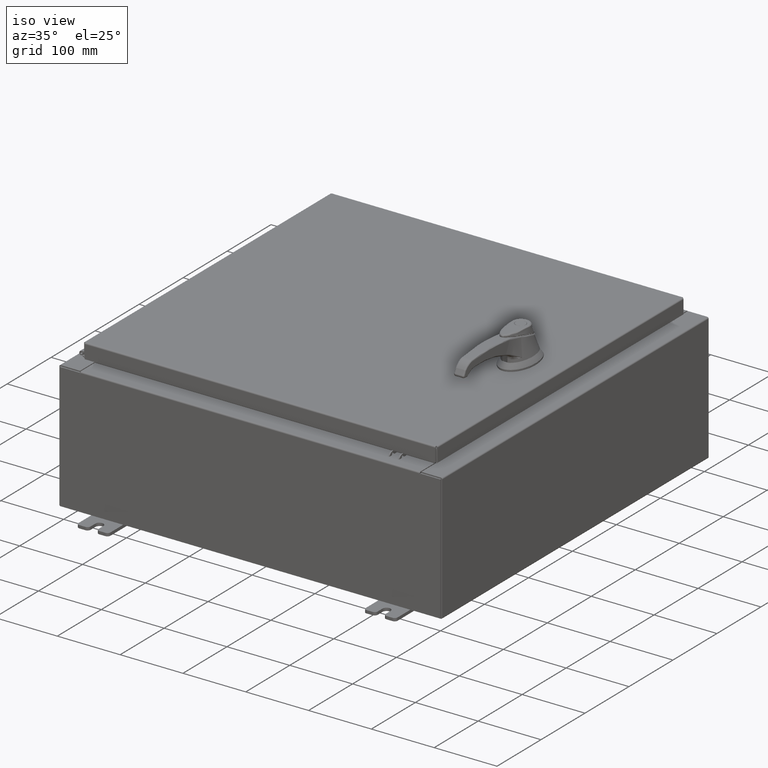
[diagram: clean part render]
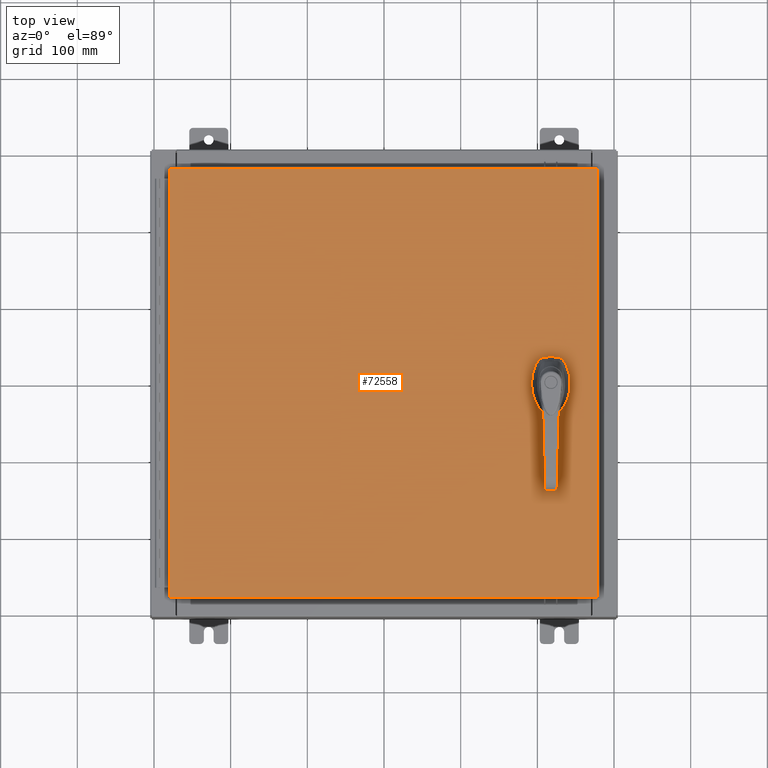
[diagram: tour spotlight — one face highlighted and labeled with its STEP entity id]
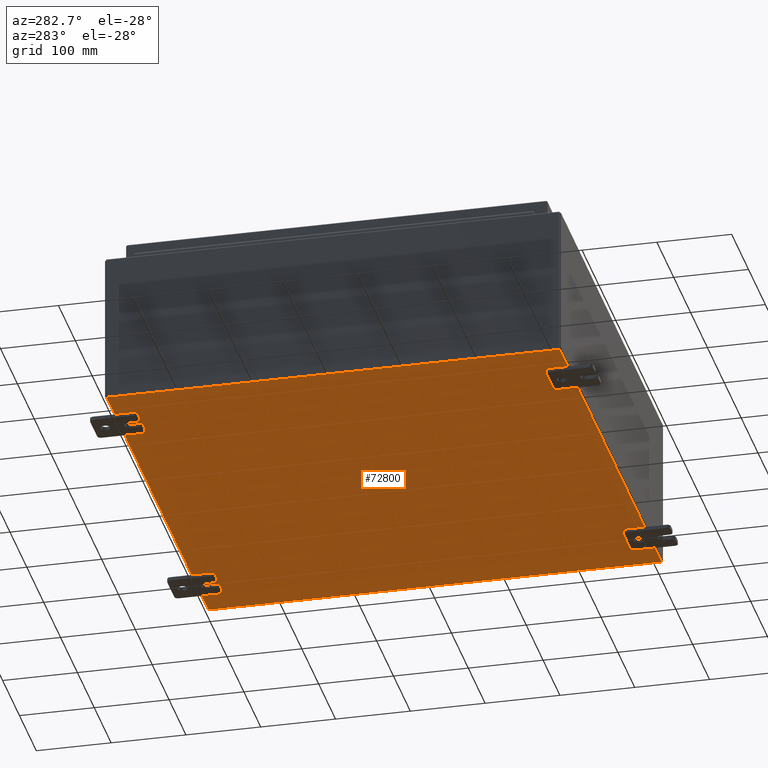
[diagram: tour spotlight — one face highlighted and labeled with its STEP entity id]
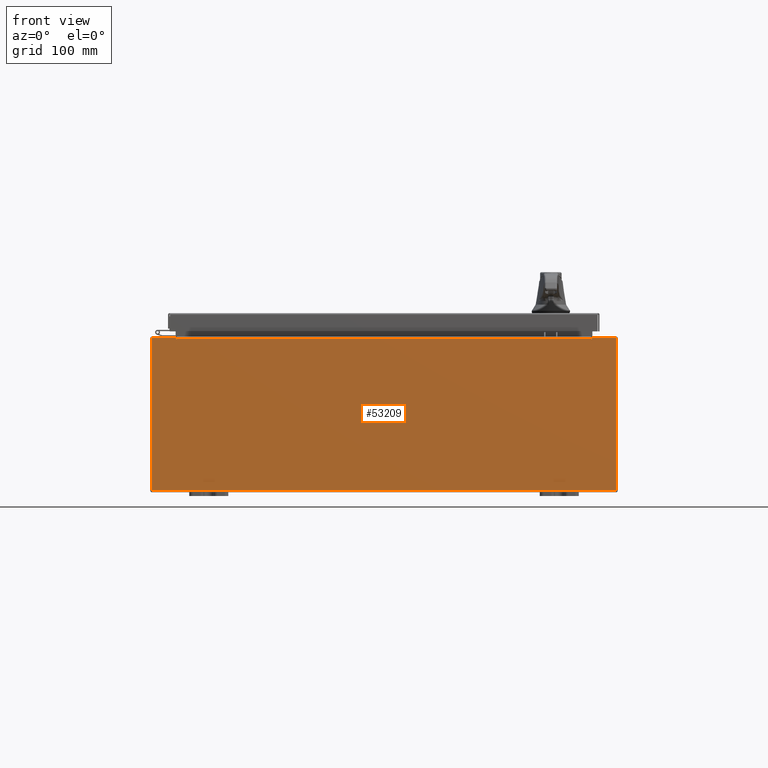
[diagram: tour spotlight — one face highlighted and labeled with its STEP entity id]
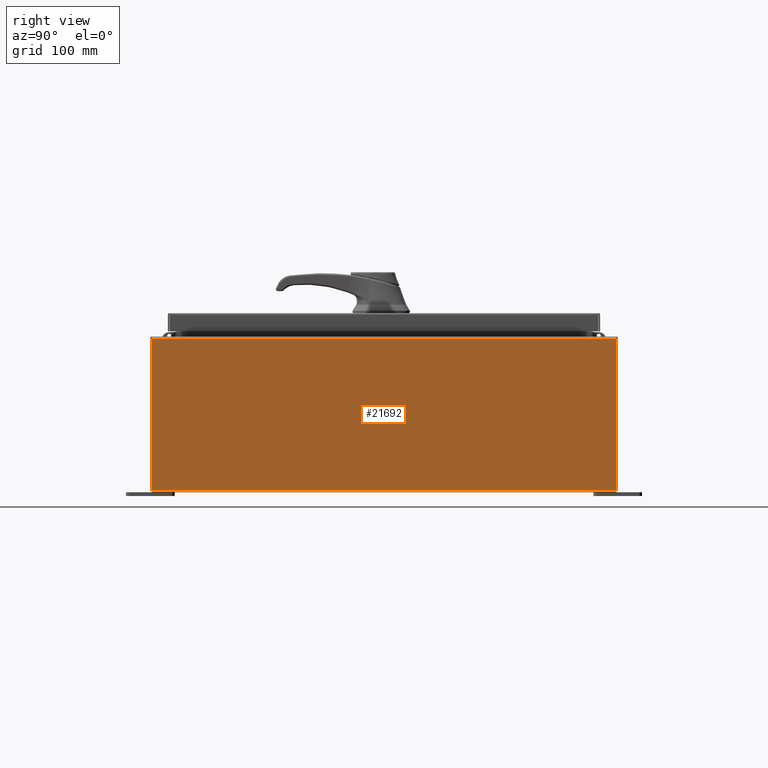
[diagram: tour spotlight — one face highlighted and labeled with its STEP entity id]
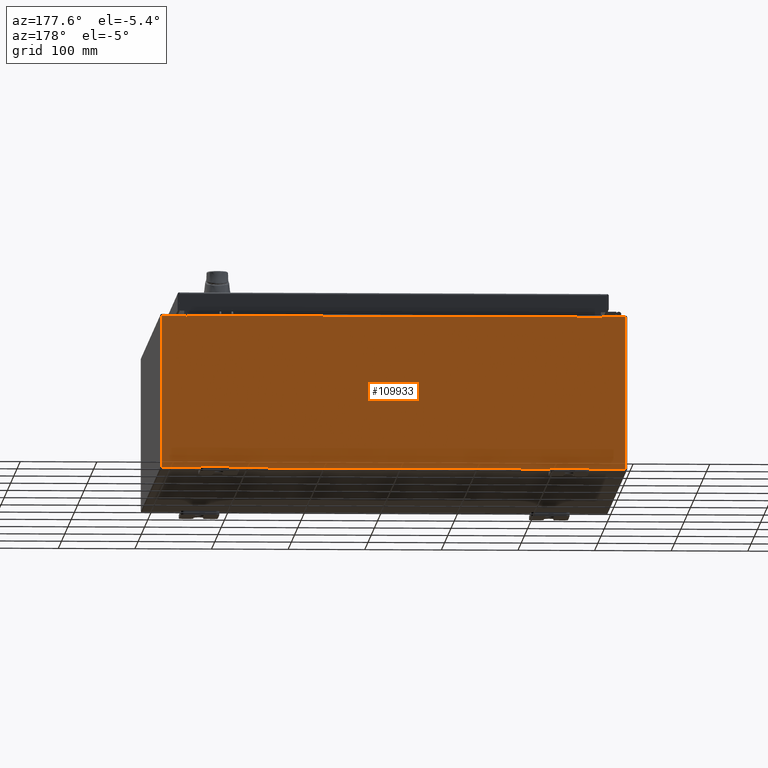
[diagram: tour spotlight — one face highlighted and labeled with its STEP entity id]
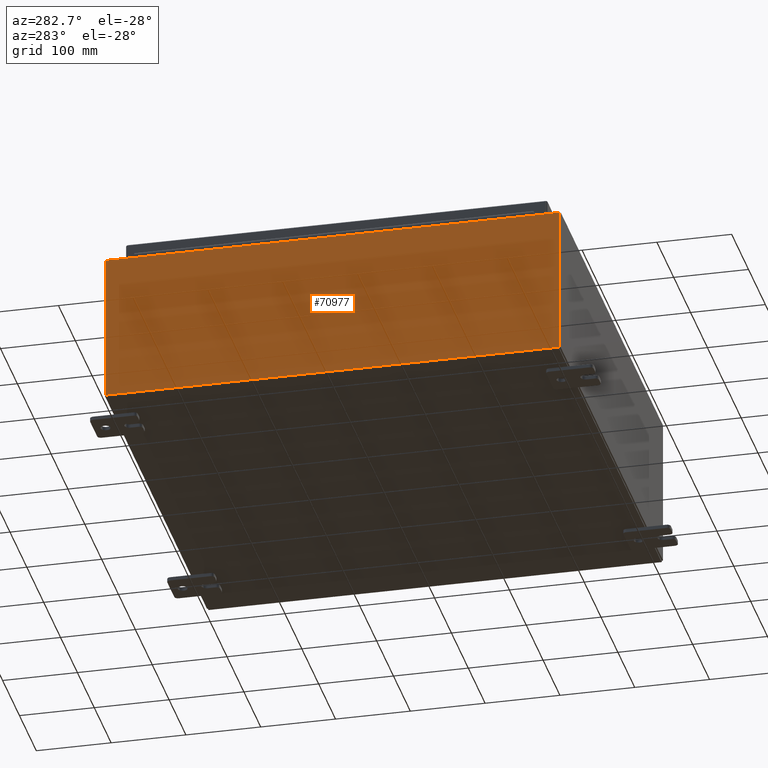
[diagram: tour spotlight — one face highlighted and labeled with its STEP entity id]
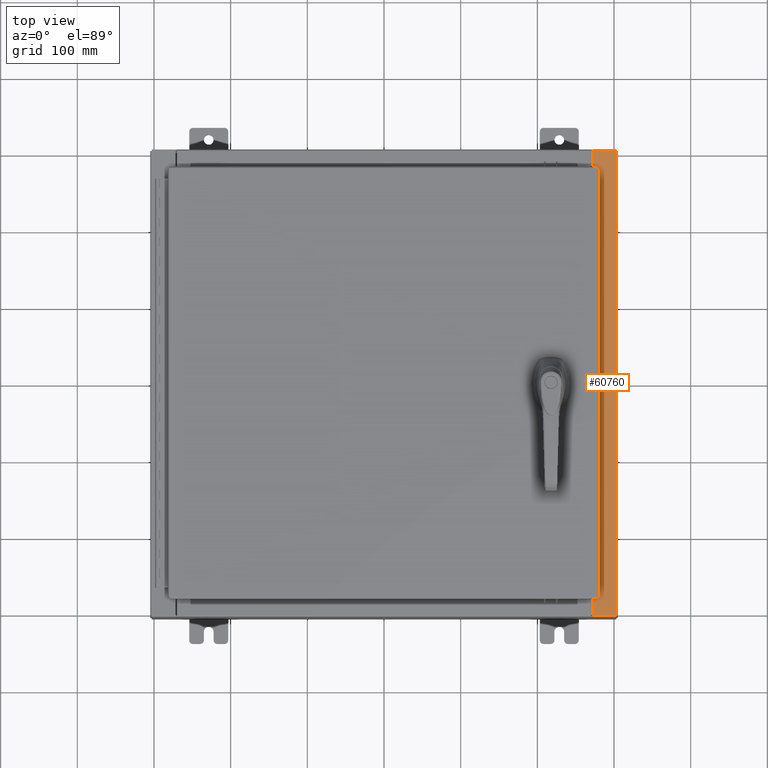
[diagram: tour spotlight — one face highlighted and labeled with its STEP entity id]
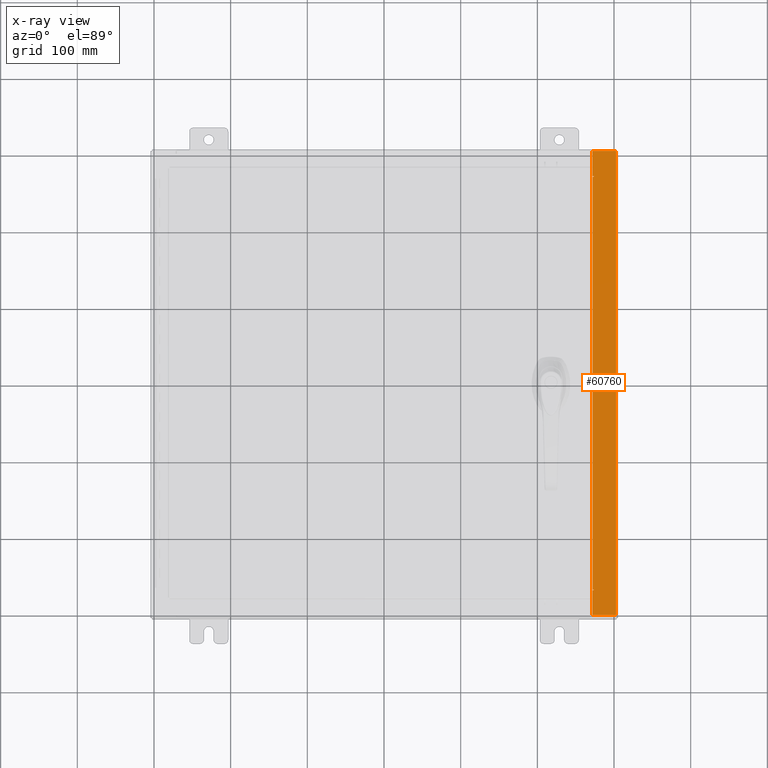
[diagram: x-ray of the same camera — body ghosted, this tour face saturated]
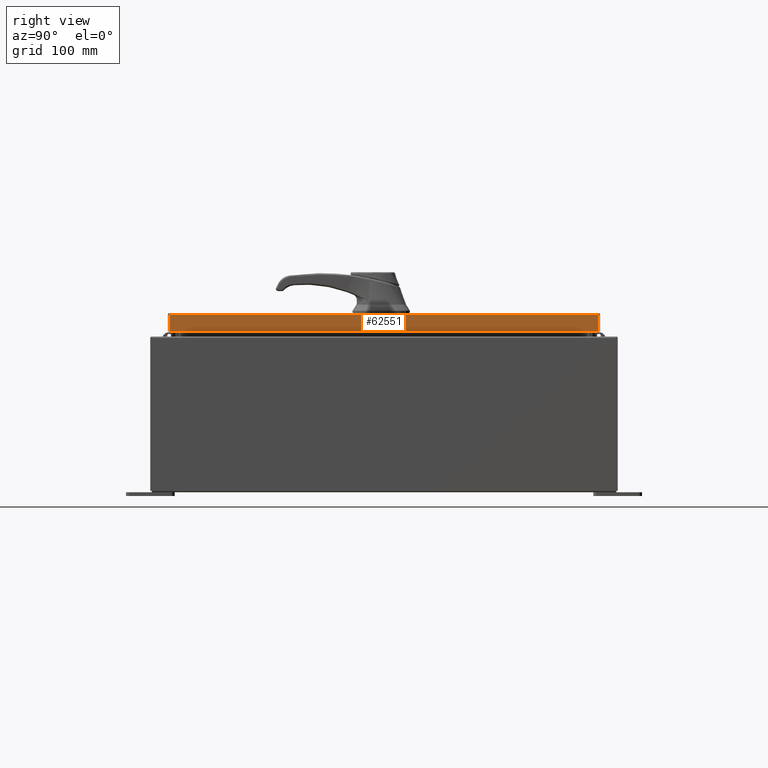
[diagram: tour spotlight — one face highlighted and labeled with its STEP entity id]
A machine part: a face-by-face anatomy tour. The part has 2498 B-rep faces; the first image is the clean iso view, then the 8 largest visible faces are spotlighted one at a time (largest first), each with its STEP entity span.

Face 1 — top view, entity #72558. In plain terms, the highlighted planar face has unit normal (0, 0, -1).
Definition (entity closure, byte-faithful):
#1198 = CARTESIAN_POINT ( 'NONE',  ( 8.778227370756305000, -0.4029999999999252000, 0.0000000000000000000 ) ) ;
#2494 = VERTEX_POINT ( 'NONE', #90512 ) ;
#3978 = CARTESIAN_POINT ( 'NONE',  ( 8.577999999999995900, 0.0000000000000000000, 0.0000000000000000000 ) ) ;
#4047 = DIRECTION ( 'NONE',  ( -0.0000000000000000000, 0.0000000000000000000, 1.000000000000000000 ) ) ;
#4712 = FACE_BOUND ( 'NONE', #80388, .T. ) ;
#5026 = DIRECTION ( 'NONE',  ( 2.728745808672812900E-015, -1.000000000000000000, 0.0000000000000000000 ) ) ;
#6474 = DIRECTION ( 'NONE',  ( -1.000000000000000000, 0.0000000000000000000, 0.0000000000000000000 ) ) ;
#7595 = DIRECTION ( 'NONE',  ( -0.0000000000000000000, 0.0000000000000000000, 1.000000000000000000 ) ) ;
#9610 = VECTOR ( 'NONE', #33623, 39.37007874015748100 ) ;
#12788 = DIRECTION ( 'NONE',  ( 1.000000000000000000, 0.0000000000000000000, 0.0000000000000000000 ) ) ;
#14909 = CARTESIAN_POINT ( 'NONE',  ( 8.377772629243686700, -0.4029999999999252000, 0.0000000000000000000 ) ) ;
#15143 = ORIENTED_EDGE ( 'NONE', *, *, #82492, .F. ) ;
#16333 = CARTESIAN_POINT ( 'NONE',  ( -10.99030000000000500, 11.00629999999999600, -1.348849946871729900E-015 ) ) ;
#16638 = EDGE_CURVE ( 'NONE', #110709, #2494, #102922, .T. ) ;
#16833 = VERTEX_POINT ( 'NONE', #75583 ) ;
#17333 = CARTESIAN_POINT ( 'NONE',  ( 8.778227370756305000, 0.4029999999999252000, 0.0000000000000000000 ) ) ;
#17625 = VERTEX_POINT ( 'NONE', #105396 ) ;
#19612 = VECTOR ( 'NONE', #74868, 39.37007874015748100 ) ;
#21120 = LINE ( 'NONE', #50196, #88414 ) ;
#22344 = CARTESIAN_POINT ( 'NONE',  ( 8.175000000000070000, 0.0000000000000000000, 0.0000000000000000000 ) ) ;
#22720 = ORIENTED_EDGE ( 'NONE', *, *, #59018, .F. ) ;
#25333 = FACE_OUTER_BOUND ( 'NONE', #91757, .T. ) ;
#28479 = VERTEX_POINT ( 'NONE', #14909 ) ;
#29397 = LINE ( 'NONE', #101118, #49947 ) ;
#29620 = PLANE ( 'NONE',  #65855 ) ;
#30301 = AXIS2_PLACEMENT_3D ( 'NONE', #3978, #65289, #12788 ) ;
#31283 = ORIENTED_EDGE ( 'NONE', *, *, #49181, .F. ) ;
#31552 = ORIENTED_EDGE ( 'NONE', *, *, #96836, .F. ) ;
#33623 = DIRECTION ( 'NONE',  ( 0.0000000000000000000, -1.000000000000000000, 0.0000000000000000000 ) ) ;
#36586 = CARTESIAN_POINT ( 'NONE',  ( 8.577999999999995900, -1.338000000000000100, 0.0000000000000000000 ) ) ;
#37631 = ORIENTED_EDGE ( 'NONE', *, *, #84437, .F. ) ;
#37847 = VECTOR ( 'NONE', #67438, 39.37007874015748100 ) ;
#38449 = CARTESIAN_POINT ( 'NONE',  ( 0.0000000000000000000, 0.0000000000000000000, 0.0000000000000000000 ) ) ;
#41733 = CARTESIAN_POINT ( 'NONE',  ( 8.577999999999995900, 0.0000000000000000000, 0.0000000000000000000 ) ) ;
#43143 = DIRECTION ( 'NONE',  ( -1.000000000000000000, -0.0000000000000000000, -0.0000000000000000000 ) ) ;
#43462 = DIRECTION ( 'NONE',  ( -0.0000000000000000000, 0.0000000000000000000, 1.000000000000000000 ) ) ;
#45404 = DIRECTION ( 'NONE',  ( 1.000000000000000000, 0.0000000000000000000, 0.0000000000000000000 ) ) ;
#47096 = CARTESIAN_POINT ( 'NONE',  ( 8.980999999999921700, 0.2002273707563080300, 0.0000000000000000000 ) ) ;
#47161 = VERTEX_POINT ( 'NONE', #57339 ) ;
#47222 = DIRECTION ( 'NONE',  ( -1.000000000000000000, 0.0000000000000000000, -0.0000000000000000000 ) ) ;
#47693 = VERTEX_POINT ( 'NONE', #89540 ) ;
#48387 = ORIENTED_EDGE ( 'NONE', *, *, #85951, .F. ) ;
#49181 = EDGE_CURVE ( 'NONE', #88268, #17625, #87332, .T. ) ;
#49478 = ORIENTED_EDGE ( 'NONE', *, *, #16638, .T. ) ;
#49947 = VECTOR ( 'NONE', #109929, 39.37007874015748100 ) ;
#50196 = CARTESIAN_POINT ( 'NONE',  ( 0.0000000000000000000, 0.4029999999999252000, 0.0000000000000000000 ) ) ;
#50583 = DIRECTION ( 'NONE',  ( 1.000000000000000000, 0.0000000000000000000, 0.0000000000000000000 ) ) ;
#50802 = LINE ( 'NONE', #57537, #74075 ) ;
#52722 = CARTESIAN_POINT ( 'NONE',  ( 8.749499999999997600, -1.338000000000000100, 0.0000000000000000000 ) ) ;
#54698 = CIRCLE ( 'NONE', #75784, 0.4499999999999156900 ) ;
#56535 = CARTESIAN_POINT ( 'NONE',  ( 8.577999999999995900, 0.0000000000000000000, 0.0000000000000000000 ) ) ;
#57207 = CIRCLE ( 'NONE', #78215, 0.4499999999999156900 ) ;
#57339 = CARTESIAN_POINT ( 'NONE',  ( 8.175000000000070000, -0.2002273707563079800, 0.0000000000000000000 ) ) ;
#57537 = CARTESIAN_POINT ( 'NONE',  ( 8.980999999999921700, 2.450686610769031800E-014, 0.0000000000000000000 ) ) ;
#58327 = ORIENTED_EDGE ( 'NONE', *, *, #79519, .F. ) ;
#58533 = VERTEX_POINT ( 'NONE', #93642 ) ;
#58591 = CARTESIAN_POINT ( 'NONE',  ( 10.99029999999999600, -11.00630000000000100, -2.048885995248197400E-016 ) ) ;
#59018 = EDGE_CURVE ( 'NONE', #47161, #28479, #65272, .T. ) ;
#60099 = CARTESIAN_POINT ( 'NONE',  ( 8.577999999999995900, -1.338000000000000100, 0.0000000000000000000 ) ) ;
#60172 = ORIENTED_EDGE ( 'NONE', *, *, #104795, .F. ) ;
#60736 = LINE ( 'NONE', #22344, #19612 ) ;
#61120 = CARTESIAN_POINT ( 'NONE',  ( 0.0000000000000000000, -0.4029999999999252000, 0.0000000000000000000 ) ) ;
#62227 = VERTEX_POINT ( 'NONE', #52722 ) ;
#62246 = ORIENTED_EDGE ( 'NONE', *, *, #66090, .T. ) ;
#63370 = CARTESIAN_POINT ( 'NONE',  ( 10.99029999999999800, 11.00629999999999600, -2.048885995248197400E-016 ) ) ;
#64508 = VECTOR ( 'NONE', #96401, 39.37007874015748100 ) ;
#64753 = EDGE_CURVE ( 'NONE', #107908, #62227, #104401, .T. ) ;
#65272 = CIRCLE ( 'NONE', #111567, 0.4499999999999156900 ) ;
#65289 = DIRECTION ( 'NONE',  ( -0.0000000000000000000, 0.0000000000000000000, 1.000000000000000000 ) ) ;
#65331 = EDGE_LOOP ( 'NONE', ( #37631, #85785 ) ) ;
#65365 = DIRECTION ( 'NONE',  ( 1.000000000000000000, 0.0000000000000000000, 0.0000000000000000000 ) ) ;
#65855 = AXIS2_PLACEMENT_3D ( 'NONE', #38449, #99738, #47222 ) ;
#66090 = EDGE_CURVE ( 'NONE', #2494, #16833, #82293, .T. ) ;
#67438 = DIRECTION ( 'NONE',  ( 0.0000000000000000000, 1.000000000000000000, 0.0000000000000000000 ) ) ;
#68916 = DIRECTION ( 'NONE',  ( 1.000000000000000000, 0.0000000000000000000, 0.0000000000000000000 ) ) ;
#72558 = ADVANCED_FACE ( 'NONE', ( #98045, #25333, #4712 ), #29620, .F. ) ;
#72966 = EDGE_CURVE ( 'NONE', #16833, #47693, #29397, .T. ) ;
#74075 = VECTOR ( 'NONE', #5026, 39.37007874015748100 ) ;
#74495 = ORIENTED_EDGE ( 'NONE', *, *, #72966, .T. ) ;
#74868 = DIRECTION ( 'NONE',  ( 0.0000000000000000000, -1.000000000000000000, 0.0000000000000000000 ) ) ;
#75583 = CARTESIAN_POINT ( 'NONE',  ( -10.99030000000000000, -11.00630000000000100, -2.048885995248197400E-016 ) ) ;
#75784 = AXIS2_PLACEMENT_3D ( 'NONE', #56535, #4047, #65365 ) ;
#78215 = AXIS2_PLACEMENT_3D ( 'NONE', #96009, #43462, #104797 ) ;
#78756 = VERTEX_POINT ( 'NONE', #17333 ) ;
#79519 = EDGE_CURVE ( 'NONE', #93679, #78756, #54698, .T. ) ;
#80388 = EDGE_LOOP ( 'NONE', ( #113084, #31283, #48387, #22720, #31552, #15143, #60172, #58327 ) ) ;
#81956 = CARTESIAN_POINT ( 'NONE',  ( 10.99029999999999800, 11.00629999999999600, -2.048885995248197400E-016 ) ) ;
#82293 = LINE ( 'NONE', #16333, #9610 ) ;
#82397 = VECTOR ( 'NONE', #43143, 39.37007874015748100 ) ;
#82492 = EDGE_CURVE ( 'NONE', #102107, #58533, #57207, .T. ) ;
#84437 = EDGE_CURVE ( 'NONE', #62227, #107908, #92144, .T. ) ;
#84465 = LINE ( 'NONE', #58591, #37847 ) ;
#85400 = AXIS2_PLACEMENT_3D ( 'NONE', #60099, #7595, #68916 ) ;
#85785 = ORIENTED_EDGE ( 'NONE', *, *, #64753, .F. ) ;
#85951 = EDGE_CURVE ( 'NONE', #28479, #88268, #111177, .T. ) ;
#86322 = EDGE_CURVE ( 'NONE', #93679, #17625, #50802, .T. ) ;
#87332 = CIRCLE ( 'NONE', #30301, 0.4499999999999156900 ) ;
#88268 = VERTEX_POINT ( 'NONE', #1198 ) ;
#88414 = VECTOR ( 'NONE', #6474, 39.37007874015748100 ) ;
#89540 = CARTESIAN_POINT ( 'NONE',  ( 10.99029999999999600, -11.00630000000000100, -2.048885995248197400E-016 ) ) ;
#90512 = CARTESIAN_POINT ( 'NONE',  ( -10.99030000000000500, 11.00629999999999600, -1.348849946871729900E-015 ) ) ;
#91757 = EDGE_LOOP ( 'NONE', ( #74495, #97567, #49478, #62246 ) ) ;
#92144 = CIRCLE ( 'NONE', #92922, 0.1715000000000011500 ) ;
#92922 = AXIS2_PLACEMENT_3D ( 'NONE', #36586, #97895, #45404 ) ;
#93642 = CARTESIAN_POINT ( 'NONE',  ( 8.175000000000070000, 0.2002273707563079800, 0.0000000000000000000 ) ) ;
#93679 = VERTEX_POINT ( 'NONE', #47096 ) ;
#96009 = CARTESIAN_POINT ( 'NONE',  ( 8.577999999999995900, 0.0000000000000000000, 0.0000000000000000000 ) ) ;
#96401 = DIRECTION ( 'NONE',  ( 1.000000000000000000, 0.0000000000000000000, 0.0000000000000000000 ) ) ;
#96836 = EDGE_CURVE ( 'NONE', #58533, #47161, #60736, .T. ) ;
#97567 = ORIENTED_EDGE ( 'NONE', *, *, #110131, .T. ) ;
#97895 = DIRECTION ( 'NONE',  ( -0.0000000000000000000, 0.0000000000000000000, 1.000000000000000000 ) ) ;
#98045 = FACE_BOUND ( 'NONE', #65331, .T. ) ;
#98192 = CARTESIAN_POINT ( 'NONE',  ( 8.406499999999994100, -1.338000000000000100, 0.0000000000000000000 ) ) ;
#98242 = CARTESIAN_POINT ( 'NONE',  ( 8.377772629243686700, 0.4029999999999252000, 0.0000000000000000000 ) ) ;
#99738 = DIRECTION ( 'NONE',  ( 0.0000000000000000000, 0.0000000000000000000, -1.000000000000000000 ) ) ;
#101118 = CARTESIAN_POINT ( 'NONE',  ( -10.99030000000000000, -11.00630000000000100, -2.048885995248197400E-016 ) ) ;
#102107 = VERTEX_POINT ( 'NONE', #98242 ) ;
#102922 = LINE ( 'NONE', #63370, #82397 ) ;
#103081 = DIRECTION ( 'NONE',  ( -0.0000000000000000000, 0.0000000000000000000, 1.000000000000000000 ) ) ;
#104401 = CIRCLE ( 'NONE', #85400, 0.1715000000000011500 ) ;
#104795 = EDGE_CURVE ( 'NONE', #78756, #102107, #21120, .T. ) ;
#104797 = DIRECTION ( 'NONE',  ( 1.000000000000000000, 0.0000000000000000000, 0.0000000000000000000 ) ) ;
#105396 = CARTESIAN_POINT ( 'NONE',  ( 8.980999999999921700, -0.2002273707563079800, 0.0000000000000000000 ) ) ;
#107908 = VERTEX_POINT ( 'NONE', #98192 ) ;
#109929 = DIRECTION ( 'NONE',  ( 1.000000000000000000, -0.0000000000000000000, -0.0000000000000000000 ) ) ;
#110131 = EDGE_CURVE ( 'NONE', #47693, #110709, #84465, .T. ) ;
#110709 = VERTEX_POINT ( 'NONE', #81956 ) ;
#111177 = LINE ( 'NONE', #61120, #64508 ) ;
#111567 = AXIS2_PLACEMENT_3D ( 'NONE', #41733, #103081, #50583 ) ;
#113084 = ORIENTED_EDGE ( 'NONE', *, *, #86322, .T. ) ;

Face 2 — auxiliary view, entity #72800. In plain terms, the highlighted planar face has unit normal (0, 0, -1).
Definition (entity closure, byte-faithful):
#803 = DIRECTION ( 'NONE',  ( 0.0000000000000000000, 0.0000000000000000000, -1.000000000000000000 ) ) ;
#4515 = ORIENTED_EDGE ( 'NONE', *, *, #36960, .T. ) ;
#4605 = CARTESIAN_POINT ( 'NONE',  ( -12.00000000000000400, 11.92529999999999800, -0.07470000000000000300 ) ) ;
#7860 = ORIENTED_EDGE ( 'NONE', *, *, #13569, .T. ) ;
#9107 = VECTOR ( 'NONE', #45321, 39.37007874015748100 ) ;
#13443 = DIRECTION ( 'NONE',  ( -1.000000000000000000, -0.0000000000000000000, -0.0000000000000000000 ) ) ;
#13569 = EDGE_CURVE ( 'NONE', #32314, #101032, #76246, .T. ) ;
#15700 = ORIENTED_EDGE ( 'NONE', *, *, #102332, .F. ) ;
#16698 = AXIS2_PLACEMENT_3D ( 'NONE', #79410, #803, #62092 ) ;
#21752 = VERTEX_POINT ( 'NONE', #72855 ) ;
#27737 = ORIENTED_EDGE ( 'NONE', *, *, #99665, .F. ) ;
#30934 = CARTESIAN_POINT ( 'NONE',  ( 11.91229999999999800, 11.92529999999999600, -0.07469999999999994700 ) ) ;
#32314 = VERTEX_POINT ( 'NONE', #30934 ) ;
#33986 = DIRECTION ( 'NONE',  ( 1.000000000000000000, 0.0000000000000000000, 0.0000000000000000000 ) ) ;
#36960 = EDGE_CURVE ( 'NONE', #21752, #45346, #111085, .T. ) ;
#45321 = DIRECTION ( 'NONE',  ( -0.0000000000000000000, -1.000000000000000000, -0.0000000000000000000 ) ) ;
#45346 = VERTEX_POINT ( 'NONE', #89615 ) ;
#46439 = VECTOR ( 'NONE', #33986, 39.37007874015748100 ) ;
#53317 = PLANE ( 'NONE',  #16698 ) ;
#62092 = DIRECTION ( 'NONE',  ( -1.000000000000000000, 0.0000000000000000000, -0.0000000000000000000 ) ) ;
#68802 = CARTESIAN_POINT ( 'NONE',  ( -12.00000000000000400, -11.92530000000000400, -0.07470000000000000300 ) ) ;
#69438 = LINE ( 'NONE', #4605, #113347 ) ;
#72800 = ADVANCED_FACE ( 'NONE', ( #89810 ), #53317, .T. ) ;
#72855 = CARTESIAN_POINT ( 'NONE',  ( -11.91230000000000400, -11.92530000000000000, -0.07469999999999994700 ) ) ;
#75218 = LINE ( 'NONE', #68802, #46439 ) ;
#76246 = LINE ( 'NONE', #106603, #9107 ) ;
#77571 = DIRECTION ( 'NONE',  ( -0.0000000000000000000, 1.000000000000000000, -0.0000000000000000000 ) ) ;
#79410 = CARTESIAN_POINT ( 'NONE',  ( 0.0000000000000000000, 0.0000000000000000000, -0.07470000000000000300 ) ) ;
#79651 = EDGE_LOOP ( 'NONE', ( #27737, #4515, #15700, #7860 ) ) ;
#85038 = VECTOR ( 'NONE', #77571, 39.37007874015748100 ) ;
#89615 = CARTESIAN_POINT ( 'NONE',  ( -11.91230000000000400, 11.92529999999999800, -0.07470000000000000300 ) ) ;
#89810 = FACE_OUTER_BOUND ( 'NONE', #79651, .T. ) ;
#93438 = CARTESIAN_POINT ( 'NONE',  ( 11.91229999999998900, -11.92530000000000400, -0.07470000000000000300 ) ) ;
#99665 = EDGE_CURVE ( 'NONE', #21752, #101032, #75218, .T. ) ;
#101032 = VERTEX_POINT ( 'NONE', #93438 ) ;
#102332 = EDGE_CURVE ( 'NONE', #32314, #45346, #69438, .T. ) ;
#106603 = CARTESIAN_POINT ( 'NONE',  ( 11.91229999999999800, 11.92529999999999800, -0.07469999999999994700 ) ) ;
#111085 = LINE ( 'NONE', #112468, #85038 ) ;
#112468 = CARTESIAN_POINT ( 'NONE',  ( -11.91230000000000400, -11.92530000000000400, -0.07469999999999994700 ) ) ;
#113347 = VECTOR ( 'NONE', #13443, 39.37007874015748100 ) ;

Face 3 — front view, entity #53209. In plain terms, the highlighted planar face has unit normal (-0, 1, -0).
Definition (entity closure, byte-faithful):
#1361 = DIRECTION ( 'NONE',  ( 0.0000000000000000000, 0.0000000000000000000, -1.000000000000000000 ) ) ;
#2322 = LINE ( 'NONE', #22166, #46222 ) ;
#3820 = CIRCLE ( 'NONE', #62355, 0.01867499999999949400 ) ;
#4042 = CIRCLE ( 'NONE', #90605, 0.01867499999999949400 ) ;
#4705 = DIRECTION ( 'NONE',  ( 0.0000000000000000000, -0.0000000000000000000, -1.000000000000000000 ) ) ;
#5081 = VERTEX_POINT ( 'NONE', #34621 ) ;
#6079 = ORIENTED_EDGE ( 'NONE', *, *, #109979, .F. ) ;
#7703 = VERTEX_POINT ( 'NONE', #74772 ) ;
#8658 = FACE_OUTER_BOUND ( 'NONE', #30906, .T. ) ;
#8703 = LINE ( 'NONE', #50685, #73101 ) ;
#10140 = ORIENTED_EDGE ( 'NONE', *, *, #112965, .T. ) ;
#15778 = DIRECTION ( 'NONE',  ( 0.0000000000000000000, 0.0000000000000000000, -1.000000000000000000 ) ) ;
#16528 = AXIS2_PLACEMENT_3D ( 'NONE', #109756, #57208, #4705 ) ;
#17883 = CARTESIAN_POINT ( 'NONE',  ( -11.92530000000000000, 0.0000000000000000000, -3.925299999999999600 ) ) ;
#18185 = LINE ( 'NONE', #75262, #62027 ) ;
#20449 = VERTEX_POINT ( 'NONE', #100346 ) ;
#21012 = CARTESIAN_POINT ( 'NONE',  ( 10.63720000000000400, 0.0000000000000000000, 0.0000000000000000000 ) ) ;
#21082 = VERTEX_POINT ( 'NONE', #101347 ) ;
#22166 = CARTESIAN_POINT ( 'NONE',  ( -11.92530000000000000, 0.0000000000000000000, 3.925299999999999600 ) ) ;
#22717 = VECTOR ( 'NONE', #58681, 39.37007874015748100 ) ;
#22747 = DIRECTION ( 'NONE',  ( 1.000000000000000000, 0.0000000000000000000, 0.0000000000000000000 ) ) ;
#22962 = CARTESIAN_POINT ( 'NONE',  ( 10.67455000000000200, 0.0000000000000000000, 3.925299999999999600 ) ) ;
#23784 = EDGE_CURVE ( 'NONE', #110100, #21082, #65193, .T. ) ;
#27342 = VERTEX_POINT ( 'NONE', #51140 ) ;
#29452 = CARTESIAN_POINT ( 'NONE',  ( -11.92530000000000000, 0.0000000000000000000, -3.925299999999999600 ) ) ;
#30558 = DIRECTION ( 'NONE',  ( 1.000000000000000000, 0.0000000000000000000, 0.0000000000000000000 ) ) ;
#30906 = EDGE_LOOP ( 'NONE', ( #92819, #72677, #6079, #87424, #52177, #59895, #76679, #41760, #10140, #101895, #87369, #92716 ) ) ;
#31016 = DIRECTION ( 'NONE',  ( -0.0000000000000000000, -0.0000000000000000000, 1.000000000000000000 ) ) ;
#31790 = CARTESIAN_POINT ( 'NONE',  ( -10.65587500000000200, 0.0000000000000000000, 3.874949999999999700 ) ) ;
#34147 = EDGE_CURVE ( 'NONE', #47354, #27342, #18185, .T. ) ;
#34621 = CARTESIAN_POINT ( 'NONE',  ( 10.67455000000000200, 0.0000000000000000000, 3.874949999999999700 ) ) ;
#34964 = CARTESIAN_POINT ( 'NONE',  ( 11.92530000000000000, 0.0000000000000000000, -3.925299999999999600 ) ) ;
#37812 = VERTEX_POINT ( 'NONE', #29452 ) ;
#39121 = VERTEX_POINT ( 'NONE', #34964 ) ;
#40580 = DIRECTION ( 'NONE',  ( 0.0000000000000000000, 0.0000000000000000000, -1.000000000000000000 ) ) ;
#41164 = VERTEX_POINT ( 'NONE', #81505 ) ;
#41760 = ORIENTED_EDGE ( 'NONE', *, *, #23784, .T. ) ;
#41890 = VECTOR ( 'NONE', #30558, 39.37007874015748100 ) ;
#42251 = DIRECTION ( 'NONE',  ( 0.0000000000000000000, 0.0000000000000000000, 1.000000000000000000 ) ) ;
#46222 = VECTOR ( 'NONE', #31016, 39.37007874015748100 ) ;
#46567 = VECTOR ( 'NONE', #78680, 39.37007874015748100 ) ;
#47354 = VERTEX_POINT ( 'NONE', #111784 ) ;
#48413 = PLANE ( 'NONE',  #16528 ) ;
#49293 = LINE ( 'NONE', #52603, #46567 ) ;
#50685 = CARTESIAN_POINT ( 'NONE',  ( 11.92530000000000000, 0.0000000000000000000, 3.925299999999999600 ) ) ;
#50830 = EDGE_CURVE ( 'NONE', #39121, #37812, #54169, .T. ) ;
#51140 = CARTESIAN_POINT ( 'NONE',  ( -10.67455000000000200, 0.0000000000000000000, 3.925299999999999600 ) ) ;
#52177 = ORIENTED_EDGE ( 'NONE', *, *, #63744, .F. ) ;
#52603 = CARTESIAN_POINT ( 'NONE',  ( -10.63720000000000400, 1.024442997624098700E-016, 3.912299999999999700 ) ) ;
#52749 = DIRECTION ( 'NONE',  ( -1.000000000000000000, -0.0000000000000000000, -0.0000000000000000000 ) ) ;
#53209 = ADVANCED_FACE ( 'NONE', ( #8658 ), #48413, .F. ) ;
#53426 = EDGE_CURVE ( 'NONE', #41164, #27342, #82674, .T. ) ;
#53863 = DIRECTION ( 'NONE',  ( -0.0000000000000000000, 1.000000000000000000, -0.0000000000000000000 ) ) ;
#54169 = LINE ( 'NONE', #17883, #77484 ) ;
#57208 = DIRECTION ( 'NONE',  ( 0.0000000000000000000, -1.000000000000000000, 0.0000000000000000000 ) ) ;
#58003 = CARTESIAN_POINT ( 'NONE',  ( 10.67454999999983300, -0.0000000000000000000, -4.633366117301815000E-013 ) ) ;
#58681 = DIRECTION ( 'NONE',  ( 0.0000000000000000000, 0.0000000000000000000, -1.000000000000000000 ) ) ;
#59895 = ORIENTED_EDGE ( 'NONE', *, *, #66251, .F. ) ;
#62027 = VECTOR ( 'NONE', #22747, 39.37007874015748100 ) ;
#62355 = AXIS2_PLACEMENT_3D ( 'NONE', #31790, #93094, #40580 ) ;
#62911 = EDGE_CURVE ( 'NONE', #110100, #5081, #66161, .T. ) ;
#63312 = LINE ( 'NONE', #21012, #68848 ) ;
#63744 = EDGE_CURVE ( 'NONE', #7703, #109382, #63312, .T. ) ;
#65193 = LINE ( 'NONE', #83086, #41890 ) ;
#66161 = LINE ( 'NONE', #58003, #95048 ) ;
#66251 = EDGE_CURVE ( 'NONE', #5081, #7703, #4042, .T. ) ;
#68848 = VECTOR ( 'NONE', #82393, 39.37007874015748100 ) ;
#70952 = EDGE_CURVE ( 'NONE', #37812, #47354, #2322, .T. ) ;
#72677 = ORIENTED_EDGE ( 'NONE', *, *, #90521, .F. ) ;
#73101 = VECTOR ( 'NONE', #15778, 39.37007874015748100 ) ;
#74772 = CARTESIAN_POINT ( 'NONE',  ( 10.63720000000000400, 0.0000000000000000000, 3.874949999999999700 ) ) ;
#75262 = CARTESIAN_POINT ( 'NONE',  ( -11.92530000000000000, 0.0000000000000000000, 3.925299999999999600 ) ) ;
#76435 = DIRECTION ( 'NONE',  ( -4.340572780400004900E-014, 0.0000000000000000000, -1.000000000000000000 ) ) ;
#76679 = ORIENTED_EDGE ( 'NONE', *, *, #62911, .F. ) ;
#77484 = VECTOR ( 'NONE', #52749, 39.37007874015748100 ) ;
#77985 = CARTESIAN_POINT ( 'NONE',  ( -10.63720000000000400, -0.0000000000000000000, 3.874949999999999700 ) ) ;
#78680 = DIRECTION ( 'NONE',  ( 1.000000000000000000, 0.0000000000000000000, 0.0000000000000000000 ) ) ;
#78785 = EDGE_CURVE ( 'NONE', #20449, #109382, #49293, .T. ) ;
#81505 = CARTESIAN_POINT ( 'NONE',  ( -10.67455000000000200, 0.0000000000000000000, 3.874949999999999700 ) ) ;
#82393 = DIRECTION ( 'NONE',  ( 0.0000000000000000000, 0.0000000000000000000, 1.000000000000000000 ) ) ;
#82539 = VERTEX_POINT ( 'NONE', #77985 ) ;
#82674 = LINE ( 'NONE', #94803, #105985 ) ;
#83086 = CARTESIAN_POINT ( 'NONE',  ( -11.92530000000000000, 0.0000000000000000000, 3.925299999999999600 ) ) ;
#87369 = ORIENTED_EDGE ( 'NONE', *, *, #70952, .T. ) ;
#87424 = ORIENTED_EDGE ( 'NONE', *, *, #78785, .T. ) ;
#90521 = EDGE_CURVE ( 'NONE', #82539, #41164, #3820, .T. ) ;
#90605 = AXIS2_PLACEMENT_3D ( 'NONE', #106354, #53863, #1361 ) ;
#92693 = LINE ( 'NONE', #111241, #22717 ) ;
#92716 = ORIENTED_EDGE ( 'NONE', *, *, #34147, .T. ) ;
#92819 = ORIENTED_EDGE ( 'NONE', *, *, #53426, .F. ) ;
#93094 = DIRECTION ( 'NONE',  ( -0.0000000000000000000, 1.000000000000000000, -0.0000000000000000000 ) ) ;
#94803 = CARTESIAN_POINT ( 'NONE',  ( -10.67455000000000200, -0.0000000000000000000, 0.0000000000000000000 ) ) ;
#95048 = VECTOR ( 'NONE', #76435, 39.37007874015748100 ) ;
#96794 = CARTESIAN_POINT ( 'NONE',  ( 10.63720000000000400, 0.0000000000000000000, 3.912299999999999700 ) ) ;
#100346 = CARTESIAN_POINT ( 'NONE',  ( -10.63720000000000400, 1.024442997624098700E-016, 3.912299999999999700 ) ) ;
#101347 = CARTESIAN_POINT ( 'NONE',  ( 11.92530000000000000, 0.0000000000000000000, 3.925299999999999600 ) ) ;
#101895 = ORIENTED_EDGE ( 'NONE', *, *, #50830, .T. ) ;
#105985 = VECTOR ( 'NONE', #42251, 39.37007874015748100 ) ;
#106354 = CARTESIAN_POINT ( 'NONE',  ( 10.65587500000000200, 0.0000000000000000000, 3.874949999999999700 ) ) ;
#109382 = VERTEX_POINT ( 'NONE', #96794 ) ;
#109756 = CARTESIAN_POINT ( 'NONE',  ( 0.0000000000000000000, 0.0000000000000000000, 0.0000000000000000000 ) ) ;
#109979 = EDGE_CURVE ( 'NONE', #20449, #82539, #92693, .T. ) ;
#110100 = VERTEX_POINT ( 'NONE', #22962 ) ;
#111241 = CARTESIAN_POINT ( 'NONE',  ( -10.63720000000000400, -0.0000000000000000000, 0.0000000000000000000 ) ) ;
#111784 = CARTESIAN_POINT ( 'NONE',  ( -11.92530000000000000, 0.0000000000000000000, 3.925299999999999600 ) ) ;
#112965 = EDGE_CURVE ( 'NONE', #21082, #39121, #8703, .T. ) ;

Face 4 — right view, entity #21692. In plain terms, the highlighted planar face has unit normal (-1, 0, 0).
Definition (entity closure, byte-faithful):
#880 = VERTEX_POINT ( 'NONE', #102698 ) ;
#6112 = CARTESIAN_POINT ( 'NONE',  ( 11.99999999999999800, -11.92530000000000400, -4.327932773236200600E-014 ) ) ;
#11284 = LINE ( 'NONE', #6112, #75693 ) ;
#14417 = VECTOR ( 'NONE', #96779, 39.37007874015748100 ) ;
#14703 = FACE_OUTER_BOUND ( 'NONE', #100828, .T. ) ;
#16982 = ORIENTED_EDGE ( 'NONE', *, *, #97243, .T. ) ;
#20000 = DIRECTION ( 'NONE',  ( 3.584876173029202900E-015, 0.0000000000000000000, 1.000000000000000000 ) ) ;
#21692 = ADVANCED_FACE ( 'NONE', ( #14703 ), #28455, .F. ) ;
#28455 = PLANE ( 'NONE',  #70014 ) ;
#29880 = VERTEX_POINT ( 'NONE', #74742 ) ;
#38020 = DIRECTION ( 'NONE',  ( 3.584876173029202900E-015, 0.0000000000000000000, 1.000000000000000000 ) ) ;
#40463 = VERTEX_POINT ( 'NONE', #71403 ) ;
#42177 = DIRECTION ( 'NONE',  ( -0.0000000000000000000, -1.000000000000000000, -0.0000000000000000000 ) ) ;
#43855 = EDGE_CURVE ( 'NONE', #29880, #880, #63802, .T. ) ;
#46942 = LINE ( 'NONE', #112357, #90872 ) ;
#51930 = VERTEX_POINT ( 'NONE', #75516 ) ;
#54015 = EDGE_CURVE ( 'NONE', #880, #40463, #11284, .T. ) ;
#54886 = CARTESIAN_POINT ( 'NONE',  ( 11.99999999999999800, 0.0000000000000000000, -4.327932773236200600E-014 ) ) ;
#62046 = LINE ( 'NONE', #90546, #88187 ) ;
#63258 = EDGE_CURVE ( 'NONE', #51930, #40463, #46942, .T. ) ;
#63802 = LINE ( 'NONE', #88006, #14417 ) ;
#70014 = AXIS2_PLACEMENT_3D ( 'NONE', #54886, #72488, #20000 ) ;
#71403 = CARTESIAN_POINT ( 'NONE',  ( 11.99999999999999800, -11.92530000000000400, 0.01299999999999983600 ) ) ;
#72488 = DIRECTION ( 'NONE',  ( -1.000000000000000000, 0.0000000000000000000, 3.584876173029202900E-015 ) ) ;
#74742 = CARTESIAN_POINT ( 'NONE',  ( 12.00000000000003000, 11.92529999999999600, 7.837599999999992100 ) ) ;
#75516 = CARTESIAN_POINT ( 'NONE',  ( 11.99999999999999800, 11.92529999999999600, 0.01299999999999984700 ) ) ;
#75693 = VECTOR ( 'NONE', #76276, 39.37007874015748100 ) ;
#76276 = DIRECTION ( 'NONE',  ( -3.584876173029202900E-015, 0.0000000000000000000, -1.000000000000000000 ) ) ;
#76455 = ORIENTED_EDGE ( 'NONE', *, *, #63258, .F. ) ;
#88006 = CARTESIAN_POINT ( 'NONE',  ( 12.00000000000003000, 11.92529999999999800, 7.837599999999992100 ) ) ;
#88187 = VECTOR ( 'NONE', #38020, 39.37007874015748100 ) ;
#90546 = CARTESIAN_POINT ( 'NONE',  ( 11.99999999999999800, 11.92529999999999800, -4.327932773236200600E-014 ) ) ;
#90872 = VECTOR ( 'NONE', #42177, 39.37007874015748100 ) ;
#96779 = DIRECTION ( 'NONE',  ( -0.0000000000000000000, -1.000000000000000000, -0.0000000000000000000 ) ) ;
#97243 = EDGE_CURVE ( 'NONE', #51930, #29880, #62046, .T. ) ;
#100828 = EDGE_LOOP ( 'NONE', ( #113162, #105199, #76455, #16982 ) ) ;
#102698 = CARTESIAN_POINT ( 'NONE',  ( 12.00000000000002700, -11.92530000000000400, 7.837599999999998300 ) ) ;
#105199 = ORIENTED_EDGE ( 'NONE', *, *, #54015, .T. ) ;
#112357 = CARTESIAN_POINT ( 'NONE',  ( 11.99999999999999800, -11.92530000000000400, 0.01299999999999984700 ) ) ;
#113162 = ORIENTED_EDGE ( 'NONE', *, *, #43855, .T. ) ;

Face 5 — auxiliary view, entity #109933. In plain terms, the highlighted planar face has unit normal (0, -1, 0).
Definition (entity closure, byte-faithful):
#1314 = EDGE_CURVE ( 'NONE', #43894, #25213, #2454, .T. ) ;
#1318 = CARTESIAN_POINT ( 'NONE',  ( 10.63720000000000400, 0.0000000000000000000, 3.874949999999999700 ) ) ;
#1688 = AXIS2_PLACEMENT_3D ( 'NONE', #96666, #44162, #105471 ) ;
#1936 = VERTEX_POINT ( 'NONE', #61553 ) ;
#1963 = ORIENTED_EDGE ( 'NONE', *, *, #22546, .T. ) ;
#2454 = LINE ( 'NONE', #72687, #72035 ) ;
#2656 = DIRECTION ( 'NONE',  ( 0.0000000000000000000, 0.0000000000000000000, -1.000000000000000000 ) ) ;
#4113 = DIRECTION ( 'NONE',  ( 1.000000000000000000, 0.0000000000000000000, 0.0000000000000000000 ) ) ;
#5790 = DIRECTION ( 'NONE',  ( 0.0000000000000000000, -0.0000000000000000000, -1.000000000000000000 ) ) ;
#8961 = VERTEX_POINT ( 'NONE', #31222 ) ;
#11555 = EDGE_CURVE ( 'NONE', #55159, #1936, #90269, .T. ) ;
#11767 = DIRECTION ( 'NONE',  ( 0.0000000000000000000, 0.0000000000000000000, 1.000000000000000000 ) ) ;
#15790 = ORIENTED_EDGE ( 'NONE', *, *, #30277, .T. ) ;
#17433 = CARTESIAN_POINT ( 'NONE',  ( -10.67455000000000200, 0.0000000000000000000, 3.874949999999999700 ) ) ;
#18125 = ORIENTED_EDGE ( 'NONE', *, *, #30009, .F. ) ;
#21686 = LINE ( 'NONE', #91537, #65565 ) ;
#22178 = ORIENTED_EDGE ( 'NONE', *, *, #1314, .F. ) ;
#22546 = EDGE_CURVE ( 'NONE', #26438, #35363, #35286, .T. ) ;
#23310 = LINE ( 'NONE', #51037, #49392 ) ;
#25213 = VERTEX_POINT ( 'NONE', #107064 ) ;
#26438 = VERTEX_POINT ( 'NONE', #112382 ) ;
#28321 = EDGE_CURVE ( 'NONE', #55159, #25213, #21686, .T. ) ;
#28370 = DIRECTION ( 'NONE',  ( 0.0000000000000000000, 0.0000000000000000000, -1.000000000000000000 ) ) ;
#28510 = AXIS2_PLACEMENT_3D ( 'NONE', #107672, #55167, #2656 ) ;
#29279 = VERTEX_POINT ( 'NONE', #40857 ) ;
#30009 = EDGE_CURVE ( 'NONE', #84379, #39162, #91449, .T. ) ;
#30277 = EDGE_CURVE ( 'NONE', #8961, #29279, #109247, .T. ) ;
#30338 = EDGE_CURVE ( 'NONE', #1936, #84379, #98286, .T. ) ;
#31222 = CARTESIAN_POINT ( 'NONE',  ( 11.92530000000000000, 0.0000000000000000000, 3.925299999999999600 ) ) ;
#31913 = PLANE ( 'NONE',  #65139 ) ;
#35286 = LINE ( 'NONE', #57741, #81864 ) ;
#35363 = VERTEX_POINT ( 'NONE', #53023 ) ;
#36804 = VECTOR ( 'NONE', #71318, 39.37007874015748100 ) ;
#37938 = ORIENTED_EDGE ( 'NONE', *, *, #30338, .F. ) ;
#38069 = EDGE_CURVE ( 'NONE', #35363, #39162, #23310, .T. ) ;
#39162 = VERTEX_POINT ( 'NONE', #52561 ) ;
#40857 = CARTESIAN_POINT ( 'NONE',  ( 11.92530000000000000, 0.0000000000000000000, -3.925299999999999600 ) ) ;
#40984 = DIRECTION ( 'NONE',  ( -4.340572780400004900E-014, 0.0000000000000000000, -1.000000000000000000 ) ) ;
#41678 = ORIENTED_EDGE ( 'NONE', *, *, #51695, .F. ) ;
#43894 = VERTEX_POINT ( 'NONE', #1318 ) ;
#44162 = DIRECTION ( 'NONE',  ( -0.0000000000000000000, 1.000000000000000000, -0.0000000000000000000 ) ) ;
#49392 = VECTOR ( 'NONE', #112368, 39.37007874015748100 ) ;
#50545 = VERTEX_POINT ( 'NONE', #67023 ) ;
#50611 = DIRECTION ( 'NONE',  ( 0.0000000000000000000, 0.0000000000000000000, 1.000000000000000000 ) ) ;
#51002 = CARTESIAN_POINT ( 'NONE',  ( -10.67455000000000200, -0.0000000000000000000, 0.0000000000000000000 ) ) ;
#51037 = CARTESIAN_POINT ( 'NONE',  ( -11.92530000000000000, 0.0000000000000000000, 3.925299999999999600 ) ) ;
#51695 = EDGE_CURVE ( 'NONE', #74184, #50545, #59524, .T. ) ;
#52561 = CARTESIAN_POINT ( 'NONE',  ( -10.67455000000000200, 0.0000000000000000000, 3.925299999999999600 ) ) ;
#53023 = CARTESIAN_POINT ( 'NONE',  ( -11.92530000000000000, 0.0000000000000000000, 3.925299999999999600 ) ) ;
#53137 = ORIENTED_EDGE ( 'NONE', *, *, #100366, .T. ) ;
#55159 = VERTEX_POINT ( 'NONE', #76391 ) ;
#55167 = DIRECTION ( 'NONE',  ( -0.0000000000000000000, 1.000000000000000000, -0.0000000000000000000 ) ) ;
#55479 = ORIENTED_EDGE ( 'NONE', *, *, #104438, .F. ) ;
#55862 = DIRECTION ( 'NONE',  ( -0.0000000000000000000, -0.0000000000000000000, 1.000000000000000000 ) ) ;
#57741 = CARTESIAN_POINT ( 'NONE',  ( -11.92530000000000000, 0.0000000000000000000, 3.925299999999999600 ) ) ;
#58190 = CARTESIAN_POINT ( 'NONE',  ( 10.67454999999983300, -0.0000000000000000000, -4.633366117301815000E-013 ) ) ;
#58297 = DIRECTION ( 'NONE',  ( 0.0000000000000000000, -1.000000000000000000, 0.0000000000000000000 ) ) ;
#59524 = LINE ( 'NONE', #58190, #82889 ) ;
#61553 = CARTESIAN_POINT ( 'NONE',  ( -10.63720000000000400, -0.0000000000000000000, 3.874949999999999700 ) ) ;
#65139 = AXIS2_PLACEMENT_3D ( 'NONE', #110849, #58297, #5790 ) ;
#65565 = VECTOR ( 'NONE', #4113, 39.37007874015748100 ) ;
#66894 = VECTOR ( 'NONE', #69158, 39.37007874015748100 ) ;
#67023 = CARTESIAN_POINT ( 'NONE',  ( 10.67455000000000200, 0.0000000000000000000, 3.874949999999999700 ) ) ;
#67552 = LINE ( 'NONE', #82498, #82664 ) ;
#69158 = DIRECTION ( 'NONE',  ( 0.0000000000000000000, 0.0000000000000000000, -1.000000000000000000 ) ) ;
#69256 = ORIENTED_EDGE ( 'NONE', *, *, #11555, .F. ) ;
#70064 = ORIENTED_EDGE ( 'NONE', *, *, #38069, .T. ) ;
#70755 = ORIENTED_EDGE ( 'NONE', *, *, #106549, .T. ) ;
#71318 = DIRECTION ( 'NONE',  ( -1.000000000000000000, -0.0000000000000000000, -0.0000000000000000000 ) ) ;
#72035 = VECTOR ( 'NONE', #11767, 39.37007874015748100 ) ;
#72687 = CARTESIAN_POINT ( 'NONE',  ( 10.63720000000000400, 0.0000000000000000000, 0.0000000000000000000 ) ) ;
#73391 = ORIENTED_EDGE ( 'NONE', *, *, #28321, .T. ) ;
#73611 = DIRECTION ( 'NONE',  ( 1.000000000000000000, 0.0000000000000000000, 0.0000000000000000000 ) ) ;
#74184 = VERTEX_POINT ( 'NONE', #82895 ) ;
#76391 = CARTESIAN_POINT ( 'NONE',  ( -10.63720000000000400, 1.024442997624098700E-016, 3.912299999999999700 ) ) ;
#80905 = CARTESIAN_POINT ( 'NONE',  ( 11.92530000000000000, 0.0000000000000000000, 3.925299999999999600 ) ) ;
#81864 = VECTOR ( 'NONE', #55862, 39.37007874015748100 ) ;
#82498 = CARTESIAN_POINT ( 'NONE',  ( -11.92530000000000000, 0.0000000000000000000, 3.925299999999999600 ) ) ;
#82664 = VECTOR ( 'NONE', #73611, 39.37007874015748100 ) ;
#82889 = VECTOR ( 'NONE', #40984, 39.37007874015748100 ) ;
#82895 = CARTESIAN_POINT ( 'NONE',  ( 10.67455000000000200, 0.0000000000000000000, 3.925299999999999600 ) ) ;
#84288 = CIRCLE ( 'NONE', #1688, 0.01867499999999949400 ) ;
#84379 = VERTEX_POINT ( 'NONE', #17433 ) ;
#90269 = LINE ( 'NONE', #104052, #66894 ) ;
#91449 = LINE ( 'NONE', #51002, #112021 ) ;
#91537 = CARTESIAN_POINT ( 'NONE',  ( -10.63720000000000400, 1.024442997624098700E-016, 3.912299999999999700 ) ) ;
#91649 = LINE ( 'NONE', #97783, #36804 ) ;
#95487 = FACE_OUTER_BOUND ( 'NONE', #110287, .T. ) ;
#96666 = CARTESIAN_POINT ( 'NONE',  ( 10.65587500000000200, 0.0000000000000000000, 3.874949999999999700 ) ) ;
#97783 = CARTESIAN_POINT ( 'NONE',  ( -11.92530000000000000, 0.0000000000000000000, -3.925299999999999600 ) ) ;
#98286 = CIRCLE ( 'NONE', #28510, 0.01867499999999949400 ) ;
#100366 = EDGE_CURVE ( 'NONE', #29279, #26438, #91649, .T. ) ;
#100993 = VECTOR ( 'NONE', #28370, 39.37007874015748100 ) ;
#104052 = CARTESIAN_POINT ( 'NONE',  ( -10.63720000000000400, -0.0000000000000000000, 0.0000000000000000000 ) ) ;
#104438 = EDGE_CURVE ( 'NONE', #50545, #43894, #84288, .T. ) ;
#105471 = DIRECTION ( 'NONE',  ( 0.0000000000000000000, 0.0000000000000000000, -1.000000000000000000 ) ) ;
#106549 = EDGE_CURVE ( 'NONE', #74184, #8961, #67552, .T. ) ;
#107064 = CARTESIAN_POINT ( 'NONE',  ( 10.63720000000000400, 0.0000000000000000000, 3.912299999999999700 ) ) ;
#107672 = CARTESIAN_POINT ( 'NONE',  ( -10.65587500000000200, 0.0000000000000000000, 3.874949999999999700 ) ) ;
#109247 = LINE ( 'NONE', #80905, #100993 ) ;
#109933 = ADVANCED_FACE ( 'NONE', ( #95487 ), #31913, .F. ) ;
#110287 = EDGE_LOOP ( 'NONE', ( #18125, #37938, #69256, #73391, #22178, #55479, #41678, #70755, #15790, #53137, #1963, #70064 ) ) ;
#110849 = CARTESIAN_POINT ( 'NONE',  ( 0.0000000000000000000, 0.0000000000000000000, 0.0000000000000000000 ) ) ;
#112021 = VECTOR ( 'NONE', #50611, 39.37007874015748100 ) ;
#112368 = DIRECTION ( 'NONE',  ( 1.000000000000000000, 0.0000000000000000000, 0.0000000000000000000 ) ) ;
#112382 = CARTESIAN_POINT ( 'NONE',  ( -11.92530000000000000, 0.0000000000000000000, -3.925299999999999600 ) ) ;

Face 6 — auxiliary view, entity #70977. In plain terms, the highlighted planar face has unit normal (1, 0, 0).
Definition (entity closure, byte-faithful):
#390 = CARTESIAN_POINT ( 'NONE',  ( -12.00000000000000400, 11.92529999999999800, -4.327932773236202500E-014 ) ) ;
#4901 = DIRECTION ( 'NONE',  ( 3.584876173029202900E-015, 0.0000000000000000000, -1.000000000000000000 ) ) ;
#8286 = VECTOR ( 'NONE', #39282, 39.37007874015748100 ) ;
#9187 = DIRECTION ( 'NONE',  ( 3.584876173029202900E-015, 0.0000000000000000000, -1.000000000000000000 ) ) ;
#15998 = ORIENTED_EDGE ( 'NONE', *, *, #52456, .F. ) ;
#18637 = DIRECTION ( 'NONE',  ( -3.584876173029202900E-015, 0.0000000000000000000, 1.000000000000000000 ) ) ;
#21299 = LINE ( 'NONE', #390, #85812 ) ;
#21621 = CARTESIAN_POINT ( 'NONE',  ( -12.00000000000003200, -11.92530000000000400, 7.837599999999999200 ) ) ;
#25678 = FACE_OUTER_BOUND ( 'NONE', #69137, .T. ) ;
#34511 = CARTESIAN_POINT ( 'NONE',  ( -12.00000000000003200, -11.92530000000000000, 7.837599999999999200 ) ) ;
#36643 = EDGE_CURVE ( 'NONE', #45009, #113310, #107012, .T. ) ;
#39282 = DIRECTION ( 'NONE',  ( 0.0000000000000000000, 1.000000000000000000, 0.0000000000000000000 ) ) ;
#44551 = ORIENTED_EDGE ( 'NONE', *, *, #56667, .T. ) ;
#45009 = VERTEX_POINT ( 'NONE', #34511 ) ;
#48900 = AXIS2_PLACEMENT_3D ( 'NONE', #74672, #57420, #4901 ) ;
#52456 = EDGE_CURVE ( 'NONE', #110626, #82092, #106084, .T. ) ;
#56667 = EDGE_CURVE ( 'NONE', #110626, #45009, #101457, .T. ) ;
#57420 = DIRECTION ( 'NONE',  ( 1.000000000000000000, 0.0000000000000000000, 3.584876173029202900E-015 ) ) ;
#59811 = ORIENTED_EDGE ( 'NONE', *, *, #110475, .T. ) ;
#69137 = EDGE_LOOP ( 'NONE', ( #81338, #59811, #15998, #44551 ) ) ;
#70977 = ADVANCED_FACE ( 'NONE', ( #25678 ), #109959, .F. ) ;
#72640 = CARTESIAN_POINT ( 'NONE',  ( -12.00000000000000400, 11.92529999999999800, 0.01299999999999983600 ) ) ;
#74672 = CARTESIAN_POINT ( 'NONE',  ( -12.00000000000000400, 0.0000000000000000000, -4.327932773236202500E-014 ) ) ;
#74683 = CARTESIAN_POINT ( 'NONE',  ( -12.00000000000003200, 11.92529999999999800, 7.837599999999999200 ) ) ;
#78200 = VECTOR ( 'NONE', #18637, 39.37007874015748100 ) ;
#80054 = VECTOR ( 'NONE', #82745, 39.37007874015748100 ) ;
#81338 = ORIENTED_EDGE ( 'NONE', *, *, #36643, .T. ) ;
#82092 = VERTEX_POINT ( 'NONE', #72640 ) ;
#82745 = DIRECTION ( 'NONE',  ( -0.0000000000000000000, 1.000000000000000000, -0.0000000000000000000 ) ) ;
#85812 = VECTOR ( 'NONE', #9187, 39.37007874015748100 ) ;
#98820 = CARTESIAN_POINT ( 'NONE',  ( -12.00000000000000400, -11.92530000000000000, 0.01299999999999984700 ) ) ;
#101457 = LINE ( 'NONE', #106002, #78200 ) ;
#106002 = CARTESIAN_POINT ( 'NONE',  ( -12.00000000000000400, -11.92530000000000400, -4.327932773236202500E-014 ) ) ;
#106084 = LINE ( 'NONE', #108768, #80054 ) ;
#107012 = LINE ( 'NONE', #21621, #8286 ) ;
#108768 = CARTESIAN_POINT ( 'NONE',  ( -12.00000000000000400, 11.92529999999999800, 0.01299999999999984700 ) ) ;
#109959 = PLANE ( 'NONE',  #48900 ) ;
#110475 = EDGE_CURVE ( 'NONE', #113310, #82092, #21299, .T. ) ;
#110626 = VERTEX_POINT ( 'NONE', #98820 ) ;
#113310 = VERTEX_POINT ( 'NONE', #74683 ) ;

Face 7 — top view, entity #60760. An x-ray twin of the same camera follows (body ghosted, this face saturated) — the face is partly hidden behind the body. In plain terms, the highlighted planar face has unit normal (-0, -0, -1).
Definition (entity closure, byte-faithful):
#1683 = VERTEX_POINT ( 'NONE', #50072 ) ;
#2548 = VECTOR ( 'NONE', #51080, 39.37007874015748100 ) ;
#3389 = CARTESIAN_POINT ( 'NONE',  ( 10.75005000000003000, -10.59375000000000200, 7.925300000000009800 ) ) ;
#4418 = DIRECTION ( 'NONE',  ( 1.000000000000000000, 0.0000000000000000000, 2.170286390199955400E-014 ) ) ;
#4420 = DIRECTION ( 'NONE',  ( -1.000000000000000000, 0.0000000000000000000, -2.170286390199955400E-014 ) ) ;
#5563 = LINE ( 'NONE', #55769, #49475 ) ;
#8387 = ORIENTED_EDGE ( 'NONE', *, *, #68302, .F. ) ;
#9225 = EDGE_CURVE ( 'NONE', #70687, #12646, #83661, .T. ) ;
#10841 = LINE ( 'NONE', #42223, #2548 ) ;
#10906 = VERTEX_POINT ( 'NONE', #14087 ) ;
#12646 = VERTEX_POINT ( 'NONE', #102659 ) ;
#13719 = VERTEX_POINT ( 'NONE', #46795 ) ;
#14087 = CARTESIAN_POINT ( 'NONE',  ( 10.75005000000003000, 10.63109999999998400, 7.925300000000008900 ) ) ;
#14926 = CIRCLE ( 'NONE', #60874, 0.01867499999999949400 ) ;
#15336 = EDGE_LOOP ( 'NONE', ( #8387, #81396, #87301, #29900, #34815, #33602, #35920, #58762, #109676, #43926, #33830, #44895 ) ) ;
#17005 = DIRECTION ( 'NONE',  ( 6.241167087353086200E-015, 4.581600452255730400E-017, 1.000000000000000000 ) ) ;
#17006 = VECTOR ( 'NONE', #75291, 39.37007874015748100 ) ;
#17466 = VERTEX_POINT ( 'NONE', #59389 ) ;
#19226 = CARTESIAN_POINT ( 'NONE',  ( 10.75005000000003000, -10.63110000000000200, 7.925300000000008900 ) ) ;
#19481 = VECTOR ( 'NONE', #108022, 39.37007874015748100 ) ;
#22572 = CARTESIAN_POINT ( 'NONE',  ( 4.972393517341146200E-014, 3.631055806426268100E-016, 7.925300000000075500 ) ) ;
#23113 = CARTESIAN_POINT ( 'NONE',  ( 11.91230000000002900, 11.92529999999999600, 7.925300000000000000 ) ) ;
#24353 = CARTESIAN_POINT ( 'NONE',  ( 10.75005000000003000, 10.61242499999998400, 7.925300000000009800 ) ) ;
#28207 = DIRECTION ( 'NONE',  ( -0.0000000000000000000, 1.000000000000000000, -0.0000000000000000000 ) ) ;
#28320 = VERTEX_POINT ( 'NONE', #47814 ) ;
#29900 = ORIENTED_EDGE ( 'NONE', *, *, #88170, .F. ) ;
#31822 = PLANE ( 'NONE',  #73420 ) ;
#33065 = VECTOR ( 'NONE', #47102, 39.37007874015748100 ) ;
#33219 = DIRECTION ( 'NONE',  ( 1.000000000000000000, 0.0000000000000000000, 0.0000000000000000000 ) ) ;
#33602 = ORIENTED_EDGE ( 'NONE', *, *, #63685, .T. ) ;
#33830 = ORIENTED_EDGE ( 'NONE', *, *, #77185, .F. ) ;
#34815 = ORIENTED_EDGE ( 'NONE', *, *, #49450, .T. ) ;
#35920 = ORIENTED_EDGE ( 'NONE', *, *, #108897, .F. ) ;
#36341 = VERTEX_POINT ( 'NONE', #45939 ) ;
#38546 = LINE ( 'NONE', #3389, #33065 ) ;
#39561 = VERTEX_POINT ( 'NONE', #41093 ) ;
#40579 = AXIS2_PLACEMENT_3D ( 'NONE', #69505, #17005, #78370 ) ;
#40613 = DIRECTION ( 'NONE',  ( -6.241167087353086200E-015, -4.581600452255731000E-017, -1.000000000000000000 ) ) ;
#41093 = CARTESIAN_POINT ( 'NONE',  ( 10.69970000000002800, -10.63110000000000200, 7.925300000000008900 ) ) ;
#42020 = VERTEX_POINT ( 'NONE', #23113 ) ;
#42223 = CARTESIAN_POINT ( 'NONE',  ( 10.71270000000003000, 10.59374999999998400, 7.925300000000009800 ) ) ;
#43367 = DIRECTION ( 'NONE',  ( -9.163200904511462000E-017, -1.000000000000000000, 4.581600452255787700E-017 ) ) ;
#43926 = ORIENTED_EDGE ( 'NONE', *, *, #95946, .F. ) ;
#44895 = ORIENTED_EDGE ( 'NONE', *, *, #9225, .F. ) ;
#45519 = EDGE_CURVE ( 'NONE', #92664, #1683, #89738, .T. ) ;
#45939 = CARTESIAN_POINT ( 'NONE',  ( 10.71270000000003000, -10.59375000000000200, 7.925300000000009800 ) ) ;
#46053 = CARTESIAN_POINT ( 'NONE',  ( 10.69970000000002800, -11.92530000000000400, 7.925300000000009800 ) ) ;
#46388 = EDGE_CURVE ( 'NONE', #13719, #28320, #10841, .T. ) ;
#46795 = CARTESIAN_POINT ( 'NONE',  ( 10.71270000000003000, 10.59374999999998400, 7.925300000000009800 ) ) ;
#47102 = DIRECTION ( 'NONE',  ( -1.000000000000000000, 0.0000000000000000000, 0.0000000000000000000 ) ) ;
#47814 = CARTESIAN_POINT ( 'NONE',  ( 10.75005000000003000, 10.59374999999998400, 7.925300000000007100 ) ) ;
#48143 = CARTESIAN_POINT ( 'NONE',  ( 10.75005000000003000, 10.63109999999998400, 7.925300000000009800 ) ) ;
#49450 = EDGE_CURVE ( 'NONE', #42020, #17466, #73482, .T. ) ;
#49475 = VECTOR ( 'NONE', #64608, 39.37007874015748100 ) ;
#50072 = CARTESIAN_POINT ( 'NONE',  ( 11.91230000000002900, -11.92530000000000400, 7.925300000000000900 ) ) ;
#51080 = DIRECTION ( 'NONE',  ( 1.000000000000000000, 0.0000000000000000000, 0.0000000000000000000 ) ) ;
#55769 = CARTESIAN_POINT ( 'NONE',  ( 10.69970000000002800, 3.631055806426238000E-016, 7.925300000000008900 ) ) ;
#56021 = LINE ( 'NONE', #95911, #58779 ) ;
#58762 = ORIENTED_EDGE ( 'NONE', *, *, #89396, .F. ) ;
#58779 = VECTOR ( 'NONE', #43367, 39.37007874015748100 ) ;
#59389 = CARTESIAN_POINT ( 'NONE',  ( 10.69970000000002800, 11.92529999999999600, 7.925300000000008900 ) ) ;
#60760 = ADVANCED_FACE ( 'NONE', ( #111729 ), #31822, .F. ) ;
#60841 = LINE ( 'NONE', #87326, #81418 ) ;
#60874 = AXIS2_PLACEMENT_3D ( 'NONE', #24353, #85717, #33219 ) ;
#63685 = EDGE_CURVE ( 'NONE', #17466, #85034, #112752, .T. ) ;
#64608 = DIRECTION ( 'NONE',  ( -4.379057701015054300E-047, -1.000000000000000000, 4.581600452255731000E-017 ) ) ;
#64899 = EDGE_CURVE ( 'NONE', #39561, #92664, #5563, .T. ) ;
#65758 = CARTESIAN_POINT ( 'NONE',  ( 10.69970000000002800, -10.63110000000000200, 7.925300000000008900 ) ) ;
#66472 = CARTESIAN_POINT ( 'NONE',  ( 4.972393517341146200E-014, -11.92530000000000400, 7.925300000000076400 ) ) ;
#68302 = EDGE_CURVE ( 'NONE', #39561, #70687, #90467, .T. ) ;
#68726 = CARTESIAN_POINT ( 'NONE',  ( 4.972393517341146200E-014, 11.92529999999999600, 7.925300000000075500 ) ) ;
#69505 = CARTESIAN_POINT ( 'NONE',  ( 10.75005000000003000, -10.61242500000000200, 7.925300000000009800 ) ) ;
#70687 = VERTEX_POINT ( 'NONE', #19226 ) ;
#70758 = VECTOR ( 'NONE', #104010, 39.37007874015748100 ) ;
#73420 = AXIS2_PLACEMENT_3D ( 'NONE', #22572, #40613, #101919 ) ;
#73482 = LINE ( 'NONE', #68726, #70758 ) ;
#75291 = DIRECTION ( 'NONE',  ( 1.000000000000000000, 0.0000000000000000000, -6.241167087353087800E-015 ) ) ;
#77185 = EDGE_CURVE ( 'NONE', #12646, #36341, #38546, .T. ) ;
#78370 = DIRECTION ( 'NONE',  ( 1.000000000000000000, 0.0000000000000000000, 0.0000000000000000000 ) ) ;
#81396 = ORIENTED_EDGE ( 'NONE', *, *, #64899, .T. ) ;
#81418 = VECTOR ( 'NONE', #28207, 39.37007874015748100 ) ;
#82571 = LINE ( 'NONE', #48143, #88121 ) ;
#83661 = CIRCLE ( 'NONE', #40579, 0.01867499999999949400 ) ;
#85034 = VERTEX_POINT ( 'NONE', #107648 ) ;
#85717 = DIRECTION ( 'NONE',  ( 6.241167087353086200E-015, 4.581600452255730400E-017, 1.000000000000000000 ) ) ;
#87301 = ORIENTED_EDGE ( 'NONE', *, *, #45519, .T. ) ;
#87326 = CARTESIAN_POINT ( 'NONE',  ( 10.71270000000003000, -10.59374999999999800, 7.925300000000009800 ) ) ;
#88121 = VECTOR ( 'NONE', #4420, 39.37007874015748100 ) ;
#88170 = EDGE_CURVE ( 'NONE', #42020, #1683, #56021, .T. ) ;
#89396 = EDGE_CURVE ( 'NONE', #28320, #10906, #14926, .T. ) ;
#89738 = LINE ( 'NONE', #66472, #17006 ) ;
#90458 = CARTESIAN_POINT ( 'NONE',  ( 10.69970000000002800, 3.631055806426238000E-016, 7.925300000000008900 ) ) ;
#90467 = LINE ( 'NONE', #65758, #102724 ) ;
#92664 = VERTEX_POINT ( 'NONE', #46053 ) ;
#95911 = CARTESIAN_POINT ( 'NONE',  ( 11.91230000000002700, -11.92530000000000400, 7.925300000000000900 ) ) ;
#95946 = EDGE_CURVE ( 'NONE', #36341, #13719, #60841, .T. ) ;
#101919 = DIRECTION ( 'NONE',  ( -1.000000000000000000, 0.0000000000000000000, 6.241167087353086200E-015 ) ) ;
#102659 = CARTESIAN_POINT ( 'NONE',  ( 10.75005000000003000, -10.59375000000000200, 7.925300000000008900 ) ) ;
#102724 = VECTOR ( 'NONE', #4418, 39.37007874015748100 ) ;
#104010 = DIRECTION ( 'NONE',  ( -1.000000000000000000, 0.0000000000000000000, 6.241167087353087800E-015 ) ) ;
#107648 = CARTESIAN_POINT ( 'NONE',  ( 10.69970000000002800, 10.63109999999998600, 7.925300000000008900 ) ) ;
#108022 = DIRECTION ( 'NONE',  ( -4.379057701015054300E-047, -1.000000000000000000, 4.581600452255731000E-017 ) ) ;
#108897 = EDGE_CURVE ( 'NONE', #10906, #85034, #82571, .T. ) ;
#109676 = ORIENTED_EDGE ( 'NONE', *, *, #46388, .F. ) ;
#111729 = FACE_OUTER_BOUND ( 'NONE', #15336, .T. ) ;
#112752 = LINE ( 'NONE', #90458, #19481 ) ;

Face 8 — right view, entity #62551. In plain terms, the highlighted planar face has unit normal (1, 0, 0).
Definition (entity closure, byte-faithful):
#2668 = DIRECTION ( 'NONE',  ( 2.532419924601866100E-015, 0.0000000000000000000, -1.000000000000000000 ) ) ;
#5110 = VERTEX_POINT ( 'NONE', #65641 ) ;
#7058 = VECTOR ( 'NONE', #96394, 39.37007874015748100 ) ;
#8814 = LINE ( 'NONE', #74327, #93794 ) ;
#17072 = EDGE_CURVE ( 'NONE', #5110, #72222, #60365, .T. ) ;
#21827 = DIRECTION ( 'NONE',  ( -2.532419924601866100E-015, -6.982962677686267500E-015, 1.000000000000000000 ) ) ;
#23561 = AXIS2_PLACEMENT_3D ( 'NONE', #46384, #55176, #2668 ) ;
#28770 = PLANE ( 'NONE',  #23561 ) ;
#36133 = CARTESIAN_POINT ( 'NONE',  ( 11.07799999999999800, -11.09400000000000100, -0.9376999999999997600 ) ) ;
#39476 = VERTEX_POINT ( 'NONE', #101653 ) ;
#40278 = CARTESIAN_POINT ( 'NONE',  ( 11.07799999999999600, 11.00515786437626700, 1.051635682097360300E-013 ) ) ;
#46384 = CARTESIAN_POINT ( 'NONE',  ( 11.07799999999999600, 0.0000000000000000000, 2.831496158075104400E-014 ) ) ;
#50973 = LINE ( 'NONE', #96031, #7058 ) ;
#51327 = ORIENTED_EDGE ( 'NONE', *, *, #17072, .F. ) ;
#55176 = DIRECTION ( 'NONE',  ( 1.000000000000000000, 0.0000000000000000000, 2.532419924601866100E-015 ) ) ;
#60365 = LINE ( 'NONE', #36133, #104277 ) ;
#61110 = CARTESIAN_POINT ( 'NONE',  ( 11.07799999999999800, -11.00515786437626200, -0.9376999999999997600 ) ) ;
#61577 = EDGE_CURVE ( 'NONE', #72222, #101053, #8814, .T. ) ;
#62551 = ADVANCED_FACE ( 'NONE', ( #70390 ), #28770, .T. ) ;
#65248 = ORIENTED_EDGE ( 'NONE', *, *, #107728, .T. ) ;
#65641 = CARTESIAN_POINT ( 'NONE',  ( 11.07799999999999800, 11.00515786437627200, -0.9376999999999997600 ) ) ;
#70390 = FACE_OUTER_BOUND ( 'NONE', #84601, .T. ) ;
#70516 = ORIENTED_EDGE ( 'NONE', *, *, #61577, .F. ) ;
#72222 = VERTEX_POINT ( 'NONE', #61110 ) ;
#74251 = LINE ( 'NONE', #40278, #92102 ) ;
#74327 = CARTESIAN_POINT ( 'NONE',  ( 11.07799999999999600, -11.00515786437626900, -0.07469999999999980800 ) ) ;
#75303 = ORIENTED_EDGE ( 'NONE', *, *, #76214, .T. ) ;
#76214 = EDGE_CURVE ( 'NONE', #39476, #101053, #50973, .T. ) ;
#84601 = EDGE_LOOP ( 'NONE', ( #70516, #51327, #65248, #75303 ) ) ;
#85031 = CARTESIAN_POINT ( 'NONE',  ( 11.07799999999999600, -11.00515786437626900, -0.08770000000000008300 ) ) ;
#88643 = DIRECTION ( 'NONE',  ( 0.0000000000000000000, -1.000000000000000000, 0.0000000000000000000 ) ) ;
#92102 = VECTOR ( 'NONE', #101233, 39.37007874015748100 ) ;
#93794 = VECTOR ( 'NONE', #21827, 39.37007874015748100 ) ;
#96031 = CARTESIAN_POINT ( 'NONE',  ( 11.07799999999999600, 0.0000000000000000000, -0.08770000000000008300 ) ) ;
#96394 = DIRECTION ( 'NONE',  ( 0.0000000000000000000, -1.000000000000000000, 0.0000000000000000000 ) ) ;
#101053 = VERTEX_POINT ( 'NONE', #85031 ) ;
#101233 = DIRECTION ( 'NONE',  ( -2.532419924601866100E-015, -6.982962677686267500E-015, 1.000000000000000000 ) ) ;
#101653 = CARTESIAN_POINT ( 'NONE',  ( 11.07799999999999600, 11.00515786437626900, -0.08770000000000008300 ) ) ;
#104277 = VECTOR ( 'NONE', #88643, 39.37007874015748100 ) ;
#107728 = EDGE_CURVE ( 'NONE', #5110, #39476, #74251, .T. ) ;